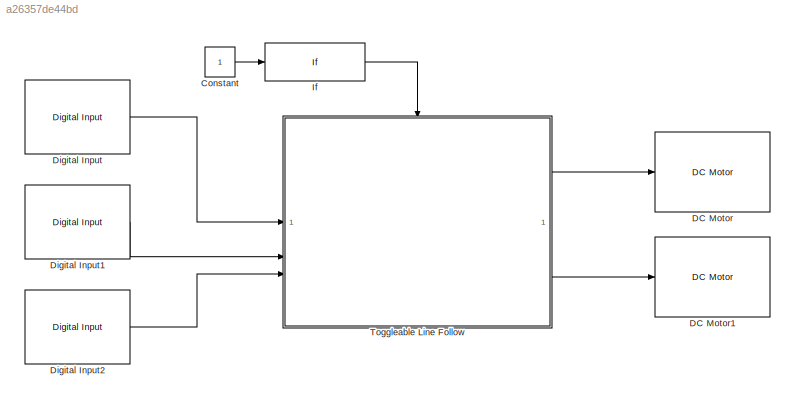
MODEL slx_a26357de44bd
KIND model
CONFIG AbsTol = auto
CONFIG EnableMultiTasking = off
CONFIG FixedStep = auto
CONFIG MaxStep = auto
CONFIG MinStep = auto
CONFIG RelTol = 1e-3
CONFIG SampleTimeConstraint = Unconstrained
CONFIG SolverName = VariableStepAuto
CONFIG StartTime = 0.0
CONFIG StopTime = 10.0
BLOCK [Constant] Constant
BLOCK [Reference] DC Motor  REF=vexarmcortexlib/Actuators/DC Motor
  SourceBlock = vexarmcortexlib/Actuators/DC Motor
  SourceType = DC Motor
BLOCK [Reference] DC Motor1  REF=vexarmcortexlib/Actuators/DC Motor
  SourceBlock = vexarmcortexlib/Actuators/DC Motor
  SourceType = DC Motor
BLOCK [Reference] Digital Input  REF=vexarmcortexlib/Sensors/Digital Input
  SourceBlock = vexarmcortexlib/Sensors/Digital Input
  SourceType = Digital Input
BLOCK [Reference] Digital Input1  REF=vexarmcortexlib/Sensors/Digital Input
  SourceBlock = vexarmcortexlib/Sensors/Digital Input
  SourceType = Digital Input
BLOCK [Reference] Digital Input2  REF=vexarmcortexlib/Sensors/Digital Input
  SourceBlock = vexarmcortexlib/Sensors/Digital Input
  SourceType = Digital Input
BLOCK [If] If
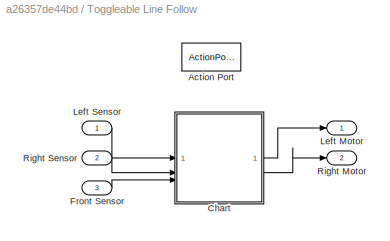
BLOCK [SubSystem] Toggleable Line Follow
  TreatAsAtomicUnit = on
BLOCK [ActionPort] Toggleable Line Follow/Action Port
  ActionPortLabel = if(u1 > 0)
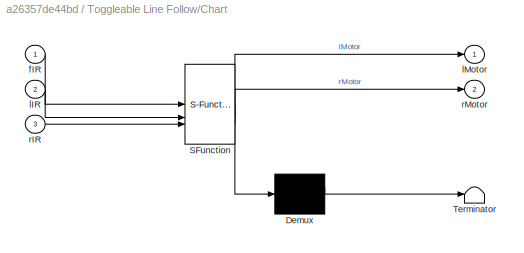
BLOCK [SubSystem] Toggleable Line Follow/Chart
  ErrorFcn = Stateflow.Translate.translate
  PermitHierarchicalResolution = ExplicitOnly
  SFBlockType = Chart
  TreatAsAtomicUnit = on
BLOCK [Demux] Toggleable Line Follow/Chart/ Demux 
  Outputs = 1
BLOCK [S-Function] Toggleable Line Follow/Chart/ SFunction 
  EnableBusSupport = on
  FunctionName = sf_sfun
  Parameters = 0,50
  PortCounts = [3 3]
  SFcnIsStateOwnerBlock = off
  SFunctionDeploymentMode = off
  Tag = Stateflow S-Function 3
BLOCK [Terminator] Toggleable Line Follow/Chart/ Terminator 
BLOCK [Inport] Toggleable Line Follow/Chart/fIR
BLOCK [Inport] Toggleable Line Follow/Chart/lIR
  Port = 2
BLOCK [Outport] Toggleable Line Follow/Chart/lMotor
BLOCK [Inport] Toggleable Line Follow/Chart/rIR
  Port = 3
BLOCK [Outport] Toggleable Line Follow/Chart/rMotor
  Port = 2
BLOCK [Inport] Toggleable Line Follow/Front Sensor
  Port = 3
BLOCK [Outport] Toggleable Line Follow/Left Motor
BLOCK [Inport] Toggleable Line Follow/Left Sensor
BLOCK [Outport] Toggleable Line Follow/Right Motor
  Port = 2
BLOCK [Inport] Toggleable Line Follow/Right Sensor
  Port = 2
LINE Constant:1 -> If:1
LINE Digital Input1:1 -> Toggleable Line Follow:2
LINE Digital Input2:1 -> Toggleable Line Follow:3
LINE Digital Input:1 -> Toggleable Line Follow:1
LINE If:1 -> Toggleable Line Follow:ifaction
LINE Toggleable Line Follow/Chart:1 -> Toggleable Line Follow/Left Motor:1
LINE Toggleable Line Follow/Chart:2 -> Toggleable Line Follow/Right Motor:1
LINE Toggleable Line Follow/Front Sensor:1 -> Toggleable Line Follow/Chart:3
LINE Toggleable Line Follow/Left Sensor:1 -> Toggleable Line Follow/Chart:1
LINE Toggleable Line Follow/Right Sensor:1 -> Toggleable Line Follow/Chart:2
LINE Toggleable Line Follow:1 -> DC Motor:1
LINE Toggleable Line Follow:2 -> DC Motor1:1
CHART Toggleable Line Follow/Chart states=6 transitions=7
  STATE_LABEL 'Start\nfin = 0;\nbrainDetect = 0;'
  STATE_LABEL 'forwardLine\nForward;'
  STATE_LABEL 'backwardLine\nBackward;'
  STATE_LABEL 'Stop\nfin = 0;\n'
  STATE_LABEL 'Forward'
  STATE_LABEL 'SCRIPT:\nfunction Forward\n\ninit();\n\nlIREQ0 = false;\nrIREQ0 = false;\nfIREQ0 = false;\n\n\n% Left IR is equal to 0\n\nlIREQ0 = logical(lIR == 0);\n\n% Right IR is equal to 0\n\nrIREQ0 = logical(rIR == 0);\n\n% Front IR is equal to 0\n\nfIREQ0 = logical(fIR == 0);\n\nif (~lIREQ0 && rIREQ0 && ~fIREQ0)\n    A4();\nelseif (lIREQ0 && ~rIREQ0 && ~fIREQ0)\n    A1();\nelseif (lIREQ0 && rIREQ0 && ~fIREQ0)\n    A1();\nelseif (~lIR...<+747ch>'
  STATE_LABEL 'Backward'
  STATE_LABEL 'SCRIPT:\nfunction Backward\n\ninit();\n\nlIREQ0 = false;\nrIREQ0 = false;\nfIREQ0 = false;\n\n\n% Left IR is equal to 0\n\nlIREQ0 = logical(lIR == 0);\n\n% Right IR is equal to 0\n\nrIREQ0 = logical(rIR == 0);\n\n% Front IR is equal to 0\n\nfIREQ0 = logical(fIR == 0);\n\nif (~lIREQ0 && rIREQ0 && ~fIREQ0)\n    A4();\nelseif (lIREQ0 && ~rIREQ0 && ~fIREQ0)\n    A1();\nelseif (lIREQ0 && rIREQ0 && ~fIREQ0)\n    A1();\nelseif (~lI...<+741ch>'
CHART  states=0 transitions=0
